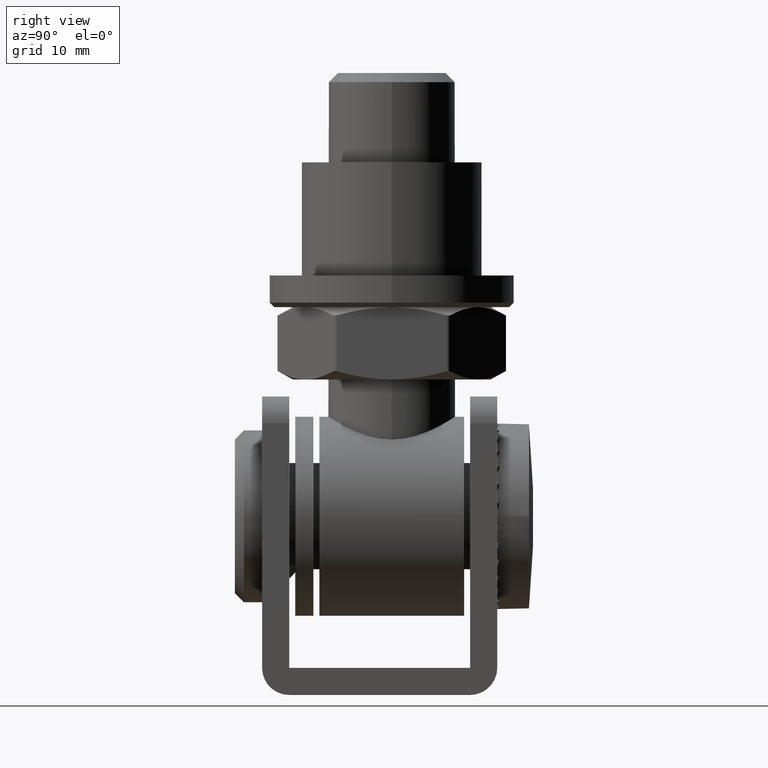
[diagram: clean part render]
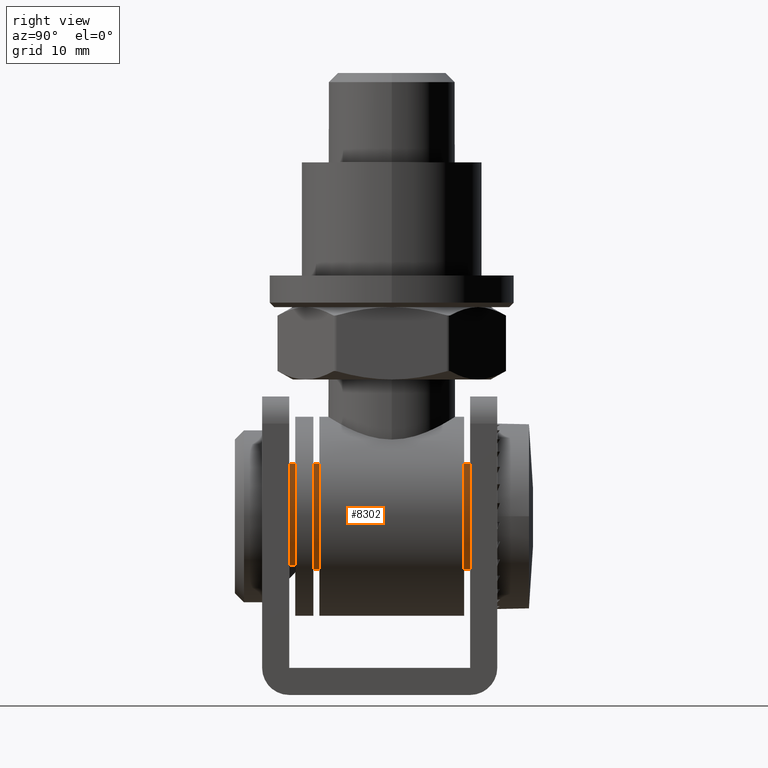
[diagram: same view with one face highlighted and labeled with its STEP entity id]
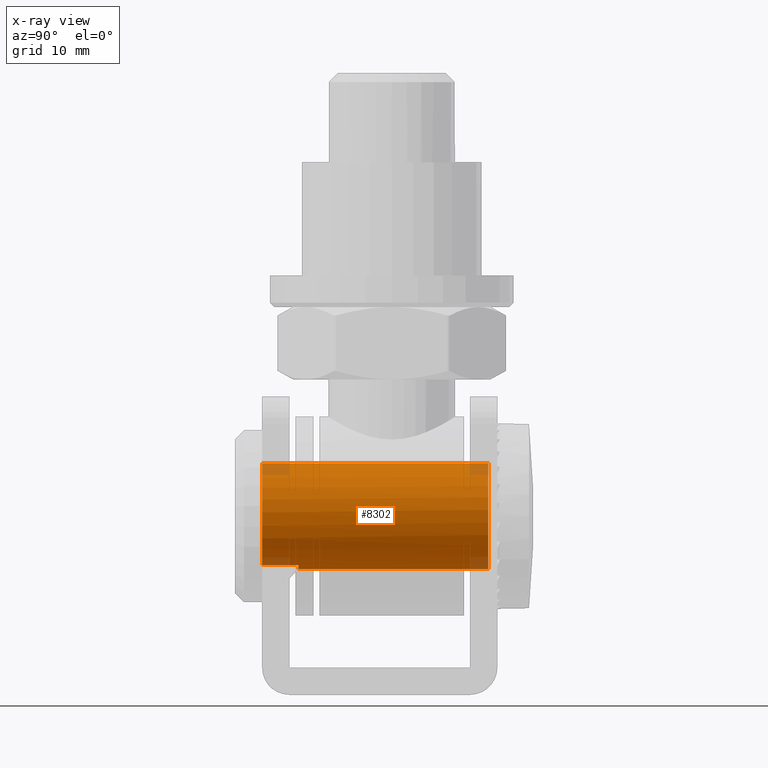
[diagram: x-ray of the same camera — body ghosted, the highlighted face saturated]
A machine part, right view. The second image highlights one B-rep face of the part: STEP entity #8302.
The next image is the same camera in x-ray: the body ghosted, the highlighted face saturated — about 5% of this face is hidden behind the body in this view.
In plain terms, the highlighted cylindrical surface (bore or boss wall) has radius 5.85 mm, axis along (0, 1, 0).
Its self-contained STEP definition (entity closure, byte-faithful):
#270 = DIRECTION ( 'NONE',  ( -1.155557966632330564E-33, -1.000000000000000000, 8.673617379884035472E-16 ) ) ;
#425 = DIRECTION ( 'NONE',  ( -2.137108174903138078E-47, 1.000000000000000000, -1.646110961499490869E-31 ) ) ;
#656 = DIRECTION ( 'NONE',  ( 0.000000000000000000, -8.896017825522085641E-16, -1.000000000000000000 ) ) ;
#1536 = CYLINDRICAL_SURFACE ( 'NONE', #6398, 5.850000000000001421 ) ;
#1767 = CIRCLE ( 'NONE', #18283, 5.850000000000001421 ) ;
#2097 = VECTOR ( 'NONE', #11861, 1000.000000000000000 ) ;
#3528 = ORIENTED_EDGE ( 'NONE', *, *, #14162, .F. ) ;
#4193 = VECTOR ( 'NONE', #425, 1000.000000000000000 ) ;
#4326 = CARTESIAN_POINT ( 'NONE',  ( 7.703719777548943412E-30, 28.50000000000000355, 0.000000000000000000 ) ) ;
#4395 = DIRECTION ( 'NONE',  ( 0.000000000000000000, 0.000000000000000000, 1.000000000000000000 ) ) ;
#4421 = DIRECTION ( 'NONE',  ( -2.137108174903138078E-47, 1.000000000000000000, -1.646110961499490869E-31 ) ) ;
#4970 = DIRECTION ( 'NONE',  ( 0.000000000000000000, 0.000000000000000000, -1.000000000000000000 ) ) ;
#5780 = CARTESIAN_POINT ( 'NONE',  ( 6.162975822039154730E-30, 6.999999999999992006, 0.000000000000000000 ) ) ;
#5920 = LINE ( 'NONE', #10050, #2097 ) ;
#6293 = EDGE_CURVE ( 'NONE', #11929, #7761, #17780, .T. ) ;
#6398 = AXIS2_PLACEMENT_3D ( 'NONE', #4326, #9268, #4395 ) ;
#6448 = EDGE_CURVE ( 'NONE', #7761, #17817, #13167, .T. ) ;
#6644 = CARTESIAN_POINT ( 'NONE',  ( 4.237045877651918877E-30, 7.000000000000006217, 5.849999999999989875 ) ) ;
#7105 = EDGE_CURVE ( 'NONE', #10657, #10657, #1767, .T. ) ;
#7582 = VERTEX_POINT ( 'NONE', #8026 ) ;
#7761 = VERTEX_POINT ( 'NONE', #6644 ) ;
#8026 = CARTESIAN_POINT ( 'NONE',  ( -2.250000000000015987, 3.000000000000002665, 5.400000000000002132 ) ) ;
#8141 = CARTESIAN_POINT ( 'NONE',  ( 2.249999999999984457, 3.000000000000002665, 5.400000000000002132 ) ) ;
#8302 = ADVANCED_FACE ( 'NONE', ( #14803, #15068 ), #1536, .T. ) ;
#8628 = CARTESIAN_POINT ( 'NONE',  ( 0.000000000000000000, 27.99999999999999645, -5.850000000000001421 ) ) ;
#9123 = EDGE_LOOP ( 'NONE', ( #18126 ) ) ;
#9268 = DIRECTION ( 'NONE',  ( -2.137108174903138078E-47, 1.000000000000000000, -1.646110961499490869E-31 ) ) ;
#10050 = CARTESIAN_POINT ( 'NONE',  ( -2.250000000000013323, 28.50000000000000355, 5.400000000000001243 ) ) ;
#10657 = VERTEX_POINT ( 'NONE', #8628 ) ;
#11238 = CARTESIAN_POINT ( 'NONE',  ( 0.000000000000000000, 27.99999999999999645, 0.000000000000000000 ) ) ;
#11449 = DIRECTION ( 'NONE',  ( 2.137108174903138078E-47, -1.000000000000000000, 1.646110961499490869E-31 ) ) ;
#11540 = EDGE_LOOP ( 'NONE', ( #11678, #20833, #18409, #3528, #15115 ) ) ;
#11569 = AXIS2_PLACEMENT_3D ( 'NONE', #17862, #270, #11719 ) ;
#11678 = ORIENTED_EDGE ( 'NONE', *, *, #6293, .F. ) ;
#11706 = AXIS2_PLACEMENT_3D ( 'NONE', #5780, #17190, #656 ) ;
#11719 = DIRECTION ( 'NONE',  ( 0.000000000000000000, -8.896017825522085641E-16, -1.000000000000000000 ) ) ;
#11861 = DIRECTION ( 'NONE',  ( 2.137108174903138078E-47, -1.000000000000000000, 1.646110961499490869E-31 ) ) ;
#11929 = VERTEX_POINT ( 'NONE', #14982 ) ;
#12995 = EDGE_CURVE ( 'NONE', #21131, #7582, #15920, .T. ) ;
#13167 = CIRCLE ( 'NONE', #11706, 5.850000000000001421 ) ;
#14162 = EDGE_CURVE ( 'NONE', #17817, #7582, #5920, .T. ) ;
#14803 = FACE_OUTER_BOUND ( 'NONE', #9123, .T. ) ;
#14982 = CARTESIAN_POINT ( 'NONE',  ( 2.249999999999984013, 7.000000000000006217, 5.400000000000001243 ) ) ;
#15017 = EDGE_CURVE ( 'NONE', #21131, #11929, #18502, .T. ) ;
#15068 = FACE_OUTER_BOUND ( 'NONE', #11540, .T. ) ;
#15115 = ORIENTED_EDGE ( 'NONE', *, *, #6448, .F. ) ;
#15920 = CIRCLE ( 'NONE', #19092, 5.850000000000002309 ) ;
#17190 = DIRECTION ( 'NONE',  ( -1.155557966632330564E-33, -1.000000000000000000, 8.673617379884035472E-16 ) ) ;
#17780 = CIRCLE ( 'NONE', #11569, 5.850000000000001421 ) ;
#17817 = VERTEX_POINT ( 'NONE', #18177 ) ;
#17862 = CARTESIAN_POINT ( 'NONE',  ( 6.162975822039154730E-30, 6.999999999999992006, 0.000000000000000000 ) ) ;
#18126 = ORIENTED_EDGE ( 'NONE', *, *, #7105, .T. ) ;
#18177 = CARTESIAN_POINT ( 'NONE',  ( -2.250000000000015543, 7.000000000000006217, 5.400000000000001243 ) ) ;
#18283 = AXIS2_PLACEMENT_3D ( 'NONE', #11238, #11449, #4970 ) ;
#18409 = ORIENTED_EDGE ( 'NONE', *, *, #12995, .T. ) ;
#18458 = CARTESIAN_POINT ( 'NONE',  ( 2.249999999999986233, 28.50000000000000355, 5.400000000000001243 ) ) ;
#18502 = LINE ( 'NONE', #18458, #4193 ) ;
#18824 = DIRECTION ( 'NONE',  ( 0.000000000000000000, 0.000000000000000000, 1.000000000000000000 ) ) ;
#19014 = CARTESIAN_POINT ( 'NONE',  ( 0.000000000000000000, 3.000000000000002665, 0.000000000000000000 ) ) ;
#19092 = AXIS2_PLACEMENT_3D ( 'NONE', #19014, #4421, #18824 ) ;
#20833 = ORIENTED_EDGE ( 'NONE', *, *, #15017, .F. ) ;
#21131 = VERTEX_POINT ( 'NONE', #8141 ) ;